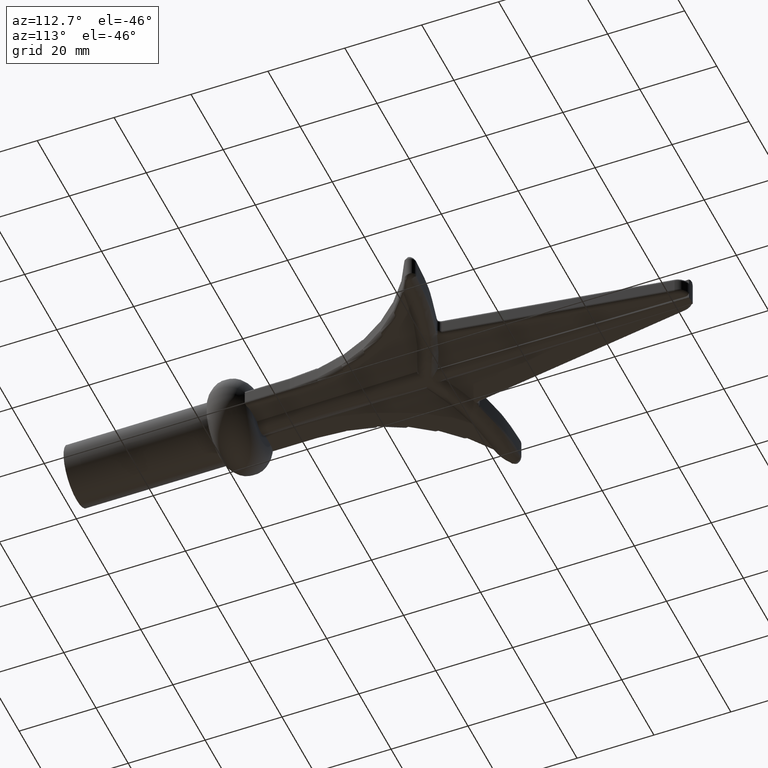
[diagram: clean part render]
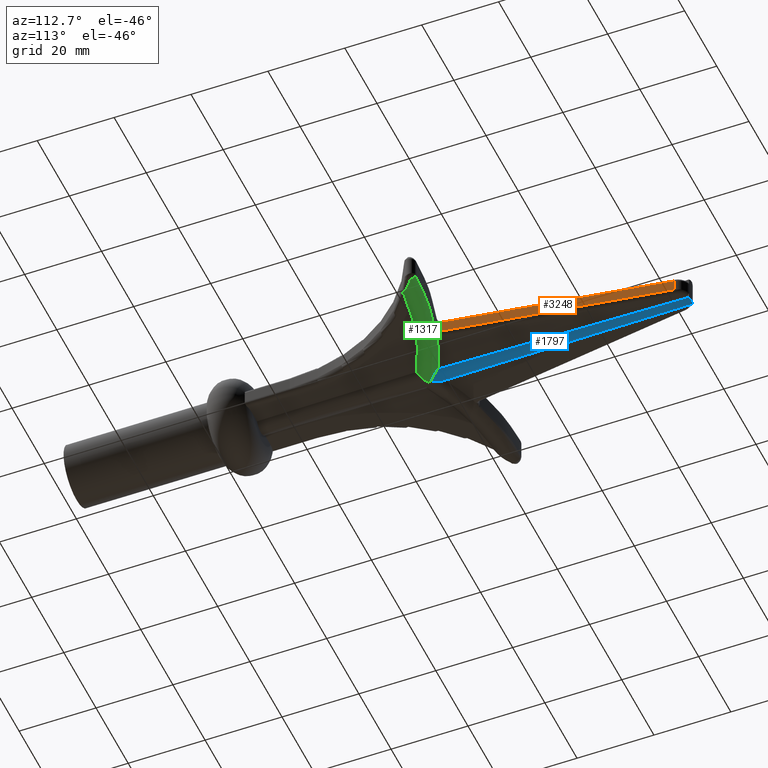
[diagram: same view with three faces highlighted in distinct colors, each labeled with its STEP entity id]
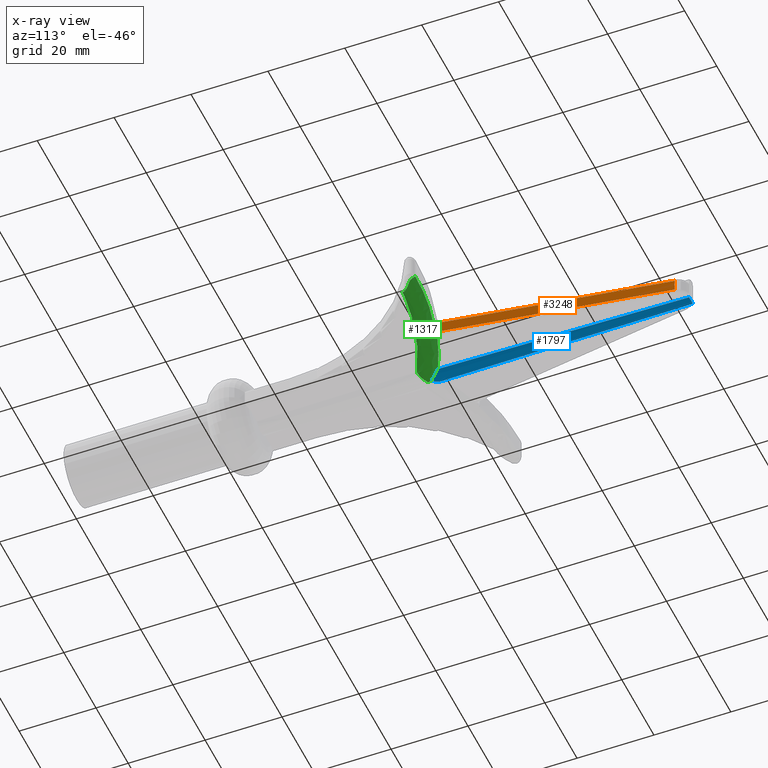
[diagram: x-ray of the same camera — body ghosted, the three highlighted faces saturated]
A machine part, auxiliary view with three faces highlighted in distinct colors.
The next image is the same camera in x-ray (body ghosted, the three faces saturated) — at least one of them is partly hidden behind the body in this view.
Their STEP definitions:

[orange] entity #3248 — the highlighted planar face has unit normal (-0.9882, -0.1533, 0).
#355 = EDGE_CURVE ( 'NONE', #4971, #5915, #15244, .T. ) ;
#694 = EDGE_LOOP ( 'NONE', ( #7406, #9055, #5603, #11361 ) ) ;
#840 = EDGE_CURVE ( 'NONE', #10910, #15716, #13915, .T. ) ;
#976 = CARTESIAN_POINT ( 'NONE',  ( 12.32500383537065858, 100.1277765334434520, 1.500000000000000000 ) ) ;
#1294 = DIRECTION ( 'NONE',  ( -0.9881743869312884510, -0.1533342134455721040, 0.000000000000000000 ) ) ;
#2070 = PLANE ( 'NONE',  #13926 ) ;
#3248 = ADVANCED_FACE ( 'NONE', ( #10589 ), #2070, .F. ) ;
#3917 = CARTESIAN_POINT ( 'NONE',  ( 12.32500383537065858, 100.1277765334434520, -2.500000000000000000 ) ) ;
#4971 = VERTEX_POINT ( 'NONE', #15572 ) ;
#5570 = CARTESIAN_POINT ( 'NONE',  ( 3.500000000000001332, 157.0012071835388667, 2.500000000000000000 ) ) ;
#5603 = ORIENTED_EDGE ( 'NONE', *, *, #7040, .T. ) ;
#5858 = VECTOR ( 'NONE', #7214, 1000.000000000000114 ) ;
#5878 = VECTOR ( 'NONE', #14134, 1000.000000000000000 ) ;
#5915 = VERTEX_POINT ( 'NONE', #8159 ) ;
#7040 = EDGE_CURVE ( 'NONE', #15716, #4971, #7685, .T. ) ;
#7214 = DIRECTION ( 'NONE',  ( 0.1533342134455720762, -0.9881743869312883399, -0.000000000000000000 ) ) ;
#7406 = ORIENTED_EDGE ( 'NONE', *, *, #12744, .F. ) ;
#7685 = LINE ( 'NONE', #3917, #12852 ) ;
#8159 = CARTESIAN_POINT ( 'NONE',  ( 3.500000000000001332, 157.0012071835388667, -1.500000000000000000 ) ) ;
#8506 = CARTESIAN_POINT ( 'NONE',  ( 3.500000000000001332, 157.0012071835388667, 1.500000000000000000 ) ) ;
#9055 = ORIENTED_EDGE ( 'NONE', *, *, #840, .T. ) ;
#9345 = CARTESIAN_POINT ( 'NONE',  ( 3.500000000000001332, 157.0012071835388667, -1.500000000000000000 ) ) ;
#9731 = DIRECTION ( 'NONE',  ( -0.1533342134455720762, 0.9881743869312883399, 0.000000000000000000 ) ) ;
#10008 = CARTESIAN_POINT ( 'NONE',  ( 3.500000000000001332, 157.0012071835388667, 2.500000000000000000 ) ) ;
#10589 = FACE_OUTER_BOUND ( 'NONE', #694, .T. ) ;
#10862 = VECTOR ( 'NONE', #9731, 1000.000000000000114 ) ;
#10910 = VERTEX_POINT ( 'NONE', #14035 ) ;
#11361 = ORIENTED_EDGE ( 'NONE', *, *, #355, .T. ) ;
#12581 = DIRECTION ( 'NONE',  ( -0.000000000000000000, -0.000000000000000000, -1.000000000000000000 ) ) ;
#12744 = EDGE_CURVE ( 'NONE', #10910, #5915, #12770, .T. ) ;
#12770 = LINE ( 'NONE', #5570, #5878 ) ;
#12852 = VECTOR ( 'NONE', #12581, 1000.000000000000000 ) ;
#13915 = LINE ( 'NONE', #8506, #5858 ) ;
#13926 = AXIS2_PLACEMENT_3D ( 'NONE', #10008, #1294, #14778 ) ;
#14035 = CARTESIAN_POINT ( 'NONE',  ( 3.500000000000001332, 157.0012071835388667, 1.500000000000000000 ) ) ;
#14134 = DIRECTION ( 'NONE',  ( -0.000000000000000000, -0.000000000000000000, -1.000000000000000000 ) ) ;
#14778 = DIRECTION ( 'NONE',  ( 0.1533342134455720762, -0.9881743869312883399, 0.000000000000000000 ) ) ;
#15244 = LINE ( 'NONE', #9345, #10862 ) ;
#15572 = CARTESIAN_POINT ( 'NONE',  ( 12.32500383537065858, 100.1277765334434520, -1.500000000000000000 ) ) ;
#15716 = VERTEX_POINT ( 'NONE', #976 ) ;

[blue] entity #1797 — the highlighted conical surface has half-angle 0.3 deg.
#4 = CARTESIAN_POINT ( 'NONE',  ( -0.1264396448751869129, 92.36065485860558510, -3.767726031668150455 ) ) ;
#12 = B_SPLINE_CURVE_WITH_KNOTS ( 'NONE', 3,
 ( #945, #9385, #4655, #1002, #787, #10698, #11882, #11935, #9275, #7200, #6125, #12084 ),
 .UNSPECIFIED., .F., .F.,
 ( 4, 2, 2, 2, 2, 4 ),
 ( 0.0003802280874064156344, 0.001231797211757282686, 0.002083366336108149683, 0.002934935460459016897, 0.003360720022634450504, 0.003786504584809884111 ),
 .UNSPECIFIED. ) ;
#160 = CARTESIAN_POINT ( 'NONE',  ( -3.153582016846582066E-14, 92.29096204883209964, -3.768090945701602301 ) ) ;
#244 = ORIENTED_EDGE ( 'NONE', *, *, #10599, .F. ) ;
#601 = B_SPLINE_CURVE_WITH_KNOTS ( 'NONE', 3,
 ( #2738, #9004, #9051, #14038 ),
 .UNSPECIFIED., .F., .F.,
 ( 4, 4 ),
 ( 0.04341592582648749754, 0.6757495788296877803 ),
 .UNSPECIFIED. ) ;
#634 = CARTESIAN_POINT ( 'NONE',  ( -1.006951313762134204, 93.26775330184528912, -3.566728771860140146 ) ) ;
#643 = EDGE_CURVE ( 'NONE', #6574, #4519, #8953, .T. ) ;
#787 = CARTESIAN_POINT ( 'NONE',  ( 1.331761157957247033, 93.70060165548267150, -3.400220532336859502 ) ) ;
#945 = CARTESIAN_POINT ( 'NONE',  ( 2.052103209963604957, 94.73507892923323936, -2.744696844932194235 ) ) ;
#1002 = CARTESIAN_POINT ( 'NONE',  ( 1.486922693738349510, 93.91818663155535774, -3.299555236711539496 ) ) ;
#1197 = CARTESIAN_POINT ( 'NONE',  ( -2.052068320943546187, 94.73506551407567144, -2.744691928529949365 ) ) ;
#1229 = CARTESIAN_POINT ( 'NONE',  ( -0.2407431886525943365, 92.44734551133778666, -3.758344598528756908 ) ) ;
#1511 = EDGE_CURVE ( 'NONE', #6574, #7067, #601, .T. ) ;
#1797 = ADVANCED_FACE ( 'NONE', ( #9677 ), #12919, .T. ) ;
#2028 = CARTESIAN_POINT ( 'NONE',  ( -1.709461791127834918, 124.6683832996656918, -2.901438384788517233 ) ) ;
#2035 = CARTESIAN_POINT ( 'NONE',  ( -0.9987872229997023510, 159.8575549057448768, -3.190298578263722540 ) ) ;
#2131 = CARTESIAN_POINT ( 'NONE',  ( -1.330697941167322984, 151.2826790878348504, -3.040791785156006011 ) ) ;
#2171 = EDGE_CURVE ( 'NONE', #9633, #9140, #3924, .T. ) ;
#2487 = DIRECTION ( 'NONE',  ( 0.000000000000000000, 0.000000000000000000, 1.000000000000000000 ) ) ;
#2738 = CARTESIAN_POINT ( 'NONE',  ( 1.171346412420531280, 159.7976383267974825, -3.085373236554601828 ) ) ;
#3196 = CARTESIAN_POINT ( 'NONE',  ( -1.171346412420323668, 159.7976383267983351, -3.085373236554597387 ) ) ;
#3240 = CARTESIAN_POINT ( 'NONE',  ( -1.826067233806085044, 115.0850378248706249, -2.851259646660764702 ) ) ;
#3300 = CARTESIAN_POINT ( 'NONE',  ( 0.8120706992319530748, 159.9073888545377429, -3.272156371224810734 ) ) ;
#3348 = CARTESIAN_POINT ( 'NONE',  ( -0.8133271923413594173, 159.9072683285429832, -3.271968638806884488 ) ) ;
#3451 = CARTESIAN_POINT ( 'NONE',  ( -1.171346412420323668, 159.7976383267983351, -3.085373236554597387 ) ) ;
#3494 = AXIS2_PLACEMENT_3D ( 'NONE', #3655, #9805, #2487 ) ;
#3655 = CARTESIAN_POINT ( 'NONE',  ( 0.000000000000000000, 48.00000000000000000, -1.166666666666666963 ) ) ;
#3924 = B_SPLINE_CURVE_WITH_KNOTS ( 'NONE', 3,
 ( #160, #4, #1229, #6096, #14670, #12465, #634, #12830, #5497, #11446, #15136, #10267 ),
 .UNSPECIFIED., .F., .F.,
 ( 4, 2, 2, 2, 2, 4 ),
 ( 0.002258785240995539630, 0.002685983637414587552, 0.003113182033833635041, 0.003967578826671760810, 0.004821975619509887012, 0.005676372412348012347 ),
 .UNSPECIFIED. ) ;
#4090 = CARTESIAN_POINT ( 'NONE',  ( -2.052068320943546187, 94.73506551407567144, -2.744691928529949365 ) ) ;
#4244 = CARTESIAN_POINT ( 'NONE',  ( -3.153582016846582066E-14, 92.29096204883209964, -3.768090945701602301 ) ) ;
#4478 = CARTESIAN_POINT ( 'NONE',  ( -2.013941410827047918, 98.32393079670328007, -2.763497893470328926 ) ) ;
#4519 = VERTEX_POINT ( 'NONE', #13134 ) ;
#4592 = CARTESIAN_POINT ( 'NONE',  ( 0.2120922160174355808, 159.9903918727688961, -3.405966381020339995 ) ) ;
#4655 = CARTESIAN_POINT ( 'NONE',  ( 1.783972216859908810, 94.34248245700470648, -3.055073370120276799 ) ) ;
#4917 = ORIENTED_EDGE ( 'NONE', *, *, #643, .F. ) ;
#5497 = CARTESIAN_POINT ( 'NONE',  ( -1.487866951234535717, 93.91952234539499500, -3.298856784626383210 ) ) ;
#5646 = CARTESIAN_POINT ( 'NONE',  ( -1.459056460950491685, 142.7671610589208910, -2.996204229555631038 ) ) ;
#5710 = CARTESIAN_POINT ( 'NONE',  ( -0.2078170459939071846, 159.9953266061707495, -3.413763620124769194 ) ) ;
#5770 = CARTESIAN_POINT ( 'NONE',  ( 1.171346412420531280, 159.7976383267974825, -3.085373236554601828 ) ) ;
#6096 = CARTESIAN_POINT ( 'NONE',  ( -0.4541148544319615898, 92.63547139123488705, -3.728581787449181117 ) ) ;
#6125 = CARTESIAN_POINT ( 'NONE',  ( 0.1270634501210378131, 92.36099869649258665, -3.767724231320743300 ) ) ;
#6270 = EDGE_CURVE ( 'NONE', #7067, #9633, #12, .T. ) ;
#6574 = VERTEX_POINT ( 'NONE', #12552 ) ;
#7067 = VERTEX_POINT ( 'NONE', #15044 ) ;
#7200 = CARTESIAN_POINT ( 'NONE',  ( 0.2413568879561906189, 92.44773211640945476, -3.758331217266118962 ) ) ;
#7473 = B_SPLINE_CURVE_WITH_KNOTS ( 'NONE', 3,
 ( #3451, #2131, #5646, #2028, #3240, #11816, #4478, #1197 ),
 .UNSPECIFIED., .F., .F.,
 ( 4, 2, 2, 4 ),
 ( 0.02784949366314176666, 0.2500000000000003331, 0.5000000000000002220, 0.5936204364114958665 ),
 .UNSPECIFIED. ) ;
#7499 = EDGE_LOOP ( 'NONE', ( #13754, #7817, #244, #4917, #8572 ) ) ;
#7817 = ORIENTED_EDGE ( 'NONE', *, *, #2171, .T. ) ;
#8572 = ORIENTED_EDGE ( 'NONE', *, *, #1511, .T. ) ;
#8953 = B_SPLINE_CURVE_WITH_KNOTS ( 'NONE', 3,
 ( #5770, #9273, #3300, #13046, #15330, #4592, #11879, #5710, #14278, #3348, #2035, #3196 ),
 .UNSPECIFIED., .F., .F.,
 ( 4, 2, 2, 2, 2, 4 ),
 ( 0.001290064517379201602, 0.001912384661161992822, 0.002223544733053388865, 0.002534704804944784041, 0.003157024948727575261, 0.003779345092510366481 ),
 .UNSPECIFIED. ) ;
#9004 = CARTESIAN_POINT ( 'NONE',  ( 1.468303931445969157, 143.8561199189778392, -3.001842882255840728 ) ) ;
#9051 = CARTESIAN_POINT ( 'NONE',  ( 1.760412261033626802, 122.1686003197198715, -2.888270763385857531 ) ) ;
#9140 = VERTEX_POINT ( 'NONE', #4090 ) ;
#9273 = CARTESIAN_POINT ( 'NONE',  ( 1.001622252425513171, 159.8565705212349712, -3.188573968829383709 ) ) ;
#9275 = CARTESIAN_POINT ( 'NONE',  ( 0.4568770065158652138, 92.63806365180239766, -3.728123137416283761 ) ) ;
#9385 = CARTESIAN_POINT ( 'NONE',  ( 1.923349973122587375, 94.54588315493167272, -2.913649841563854981 ) ) ;
#9633 = VERTEX_POINT ( 'NONE', #4244 ) ;
#9677 = FACE_OUTER_BOUND ( 'NONE', #7499, .T. ) ;
#9805 = DIRECTION ( 'NONE',  ( -0.000000000000000000, -1.000000000000000000, 0.000000000000000000 ) ) ;
#10267 = CARTESIAN_POINT ( 'NONE',  ( -2.052068320943546187, 94.73506551407567144, -2.744691928529949365 ) ) ;
#10599 = EDGE_CURVE ( 'NONE', #4519, #9140, #7473, .T. ) ;
#10698 = CARTESIAN_POINT ( 'NONE',  ( 1.007018289981889581, 93.26785446574443483, -3.566671985593288241 ) ) ;
#11446 = CARTESIAN_POINT ( 'NONE',  ( -1.784301824032667350, 94.34296634593886210, -3.054723049333987639 ) ) ;
#11816 = CARTESIAN_POINT ( 'NONE',  ( -1.974646514331949376, 101.9127696317646610, -2.782289181393829747 ) ) ;
#11879 = CARTESIAN_POINT ( 'NONE',  ( 0.1067360902511719500, 159.9951605734033251, -3.413500596530975262 ) ) ;
#11882 = CARTESIAN_POINT ( 'NONE',  ( 0.8376707201287530991, 93.05119144795558839, -3.632993108843812102 ) ) ;
#11935 = CARTESIAN_POINT ( 'NONE',  ( 0.5559184006993767024, 92.73986438422312517, -3.707449136835379022 ) ) ;
#12084 = CARTESIAN_POINT ( 'NONE',  ( -3.153582016846582066E-14, 92.29096204883209964, -3.768090945701602301 ) ) ;
#12465 = CARTESIAN_POINT ( 'NONE',  ( -0.8371574584546191966, 93.05046264819901580, -3.633240920637005544 ) ) ;
#12552 = CARTESIAN_POINT ( 'NONE',  ( 1.171346412420531280, 159.7976383267974825, -3.085373236554601828 ) ) ;
#12830 = CARTESIAN_POINT ( 'NONE',  ( -1.332333438629113687, 93.70137619858678590, -3.399904710376417061 ) ) ;
#12919 = CONICAL_SURFACE ( 'NONE', #3494, 2.833333333333333037, 0.005235987755983000265 ) ;
#13046 = CARTESIAN_POINT ( 'NONE',  ( 0.5169763563577022270, 159.9590096186928463, -3.355890807083308669 ) ) ;
#13134 = CARTESIAN_POINT ( 'NONE',  ( -1.171346412420323668, 159.7976383267983351, -3.085373236554597387 ) ) ;
#13754 = ORIENTED_EDGE ( 'NONE', *, *, #6270, .T. ) ;
#14038 = CARTESIAN_POINT ( 'NONE',  ( 2.052103209963604957, 94.73507892923323936, -2.744696844932194235 ) ) ;
#14278 = CARTESIAN_POINT ( 'NONE',  ( -0.4139468290724561683, 159.9769324199384073, -3.384955679446843391 ) ) ;
#14670 = CARTESIAN_POINT ( 'NONE',  ( -0.5540862372855516194, 92.73792163275466294, -3.707876593732016168 ) ) ;
#15044 = CARTESIAN_POINT ( 'NONE',  ( 2.052103209963604957, 94.73507892923323936, -2.744696844932194235 ) ) ;
#15136 = CARTESIAN_POINT ( 'NONE',  ( -1.923467753621212362, 94.54605629616327178, -2.913495194443820324 ) ) ;
#15330 = CARTESIAN_POINT ( 'NONE',  ( 0.4166892119434393860, 159.9723099996020608, -3.377151205954415314 ) ) ;

[green] entity #1317 — the highlighted face is a freeform B-spline surface patch.
#12 = B_SPLINE_CURVE_WITH_KNOTS ( 'NONE', 3,
 ( #945, #9385, #4655, #1002, #787, #10698, #11882, #11935, #9275, #7200, #6125, #12084 ),
 .UNSPECIFIED., .F., .F.,
 ( 4, 2, 2, 2, 2, 4 ),
 ( 0.0003802280874064156344, 0.001231797211757282686, 0.002083366336108149683, 0.002934935460459016897, 0.003360720022634450504, 0.003786504584809884111 ),
 .UNSPECIFIED. ) ;
#68 = VERTEX_POINT ( 'NONE', #13798 ) ;
#85 = CARTESIAN_POINT ( 'NONE',  ( 28.81598446080889531, 96.87967929215369622, -2.500000000000000000 ) ) ;
#203 = CARTESIAN_POINT ( 'NONE',  ( 33.34625859384622970, 104.5427267965029756, -2.500000000000000888 ) ) ;
#263 = CARTESIAN_POINT ( 'NONE',  ( 33.34831288682511286, 103.2865381603492381, -4.772727272727272485 ) ) ;
#282 = CARTESIAN_POINT ( 'NONE',  ( 28.34289530530126555, 96.73446621655568833, -2.285433751030570004 ) ) ;
#301 = CARTESIAN_POINT ( 'NONE',  ( 28.81597245504899263, 96.87967142556627209, -2.499986647238456872 ) ) ;
#302 = CARTESIAN_POINT ( 'NONE',  ( 2.897914937243554867, 89.72783605101008675, -2.500000000000000000 ) ) ;
#309 = CARTESIAN_POINT ( 'NONE',  ( 33.34607606368569321, 104.6543429660512032, -2.298061290073216245 ) ) ;
#356 = CARTESIAN_POINT ( 'NONE',  ( 2.336155231575338220, 90.07233965420687127, -3.240556201410553783 ) ) ;
#365 = CARTESIAN_POINT ( 'NONE',  ( 33.35267825940525910, 100.6171373085225014, -4.772727272727271597 ) ) ;
#774 = CARTESIAN_POINT ( 'NONE',  ( 3.299375577312292115E-14, 92.02961223027969595, -3.867188914202413397 ) ) ;
#787 = CARTESIAN_POINT ( 'NONE',  ( 1.331761157957247033, 93.70060165548267150, -3.400220532336859502 ) ) ;
#797 = EDGE_CURVE ( 'NONE', #5072, #68, #6484, .T. ) ;
#883 = B_SPLINE_CURVE_WITH_KNOTS ( 'NONE', 3,
 ( #7735, #6598, #1819, #10362, #15013, #10136 ),
 .UNSPECIFIED., .F., .F.,
 ( 4, 2, 4 ),
 ( -5.999999994808508060E-08, 0.0003888349486372245033, 0.0007777298972743971507 ),
 .UNSPECIFIED. ) ;
#945 = CARTESIAN_POINT ( 'NONE',  ( 2.052103209963604957, 94.73507892923323936, -2.744696844932194235 ) ) ;
#956 = ORIENTED_EDGE ( 'NONE', *, *, #4882, .T. ) ;
#1002 = CARTESIAN_POINT ( 'NONE',  ( 1.486922693738349510, 93.91818663155535774, -3.299555236711539496 ) ) ;
#1140 = CARTESIAN_POINT ( 'NONE',  ( 12.42488152674402713, 99.03894282697550011, -2.389480583458578167 ) ) ;
#1317 = ADVANCED_FACE ( 'NONE', ( #15424 ), #1407, .T. ) ;
#1361 = CARTESIAN_POINT ( 'NONE',  ( 14.40141193399546005, 102.3532090018719032, -2.197091935109824146 ) ) ;
#1407 =( BOUNDED_SURFACE ( )  B_SPLINE_SURFACE ( 3, 3, ( 
 ( #9990, #12297, #1361, #6234 ),
 ( #9879, #309, #5127, #13689 ),
 ( #11169, #7630, #2555, #7476 ),
 ( #11119, #203, #7574, #4967 ),
 ( #5076, #263, #3946, #13623 ),
 ( #14964, #365, #6293, #12508 ),
 ( #3784, #14862, #13751, #6179 ),
 ( #8867, #6399, #6350, #12346 ),
 ( #1571, #1517, #10040, #7522 ),
 ( #2706, #1467, #10087, #11545 ) ),
 .UNSPECIFIED., .F., .F., .T. ) 
 B_SPLINE_SURFACE_WITH_KNOTS ( ( 4, 3, 3, 4 ),
 ( 4, 4 ),
 ( -0.06865916137510678918, 0.000000000000000000, 1.000000000000000000, 1.087570831025001628 ),
 ( 0.000000000000000000, 1.000000000000000000 ),
 .UNSPECIFIED. ) 
 GEOMETRIC_REPRESENTATION_ITEM ( )  RATIONAL_B_SPLINE_SURFACE ( (
 ( 1.000000000000000000, 0.9480679056726728504, 0.9480679056726728504, 1.000000000000000000),
 ( 1.000000000000000000, 0.9480679056726728504, 0.9480679056726728504, 1.000000000000000000),
 ( 1.000000000000000000, 0.9480679056726728504, 0.9480679056726728504, 1.000000000000000000),
 ( 1.000000000000000000, 0.9480679056726728504, 0.9480679056726728504, 1.000000000000000000),
 ( 0.6470588235294117974, 0.6134557036705530209, 0.6134557036705530209, 0.6470588235294117974),
 ( 0.6470588235294117974, 0.6134557036705530209, 0.6134557036705530209, 0.6470588235294117974),
 ( 1.000000000000000000, 0.9480679056726728504, 0.9480679056726728504, 1.000000000000000000),
 ( 1.000000000000000000, 0.9480679056726728504, 0.9480679056726728504, 1.000000000000000000),
 ( 1.000000000000000000, 0.9480679056726728504, 0.9480679056726728504, 1.000000000000000000),
 ( 1.000000000000000000, 0.9480679056726728504, 0.9480679056726728504, 1.000000000000000000) ) ) 
 REPRESENTATION_ITEM ( '' )  SURFACE ( )  );
#1467 = CARTESIAN_POINT ( 'NONE',  ( 33.35508176254473511, 99.14740861753689671, -2.113658098419110676 ) ) ;
#1484 = EDGE_CURVE ( 'NONE', #68, #9816, #12647, .T. ) ;
#1517 = CARTESIAN_POINT ( 'NONE',  ( 33.35496535915787319, 99.21858863581417154, -2.242438732279406821 ) ) ;
#1571 = CARTESIAN_POINT ( 'NONE',  ( 50.34395675241247403, 94.43765056449909423, -2.242438732279407709 ) ) ;
#1606 = VERTEX_POINT ( 'NONE', #7773 ) ;
#1609 = CARTESIAN_POINT ( 'NONE',  ( 28.49762015088053602, 96.66915465959066012, -2.143901268413833439 ) ) ;
#1649 = CARTESIAN_POINT ( 'NONE',  ( 28.81598446080889531, 96.87967929215369622, -2.500000000000000000 ) ) ;
#1703 = CARTESIAN_POINT ( 'NONE',  ( 30.24241527630156767, 98.24329415392647036, -3.734434471835950120 ) ) ;
#1705 = CARTESIAN_POINT ( 'NONE',  ( 0.4123079225041143547, 91.23717403514729085, -4.000000000000000000 ) ) ;
#1715 = CARTESIAN_POINT ( 'NONE',  ( 28.60329097290494005, 96.73967290419855658, -2.262770503988554172 ) ) ;
#1760 = EDGE_CURVE ( 'NONE', #7004, #15138, #14790, .T. ) ;
#1811 = EDGE_CURVE ( 'NONE', #9164, #7276, #13988, .T. ) ;
#1819 = CARTESIAN_POINT ( 'NONE',  ( 13.14109557744464318, 99.09441892387333439, -2.661800833897432828 ) ) ;
#1863 = VERTEX_POINT ( 'NONE', #12482 ) ;
#1900 = ORIENTED_EDGE ( 'NONE', *, *, #10435, .F. ) ;
#1956 = CARTESIAN_POINT ( 'NONE',  ( 5.233357646385202067, 96.45237504848141441, -2.500000000000005773 ) ) ;
#1977 = CARTESIAN_POINT ( 'NONE',  ( -2.649499780033069642E-15, 91.75905622231472591, -3.933838625088992291 ) ) ;
#2235 = CARTESIAN_POINT ( 'NONE',  ( 28.04435640870163837, 96.78030661502135956, -2.410634872105177351 ) ) ;
#2268 = CARTESIAN_POINT ( 'NONE',  ( 12.59558633204140143, 99.18069464534063684, -2.227335105104313762 ) ) ;
#2359 = B_SPLINE_CURVE_WITH_KNOTS ( 'NONE', 3,
 ( #10244, #11862, #4522, #13079 ),
 .UNSPECIFIED., .F., .F.,
 ( 4, 4 ),
 ( 0.002904451398333466206, 0.003384362063196952146 ),
 .UNSPECIFIED. ) ;
#2389 = ORIENTED_EDGE ( 'NONE', *, *, #797, .T. ) ;
#2555 = CARTESIAN_POINT ( 'NONE',  ( 14.43063936990282414, 102.2454873252596599, -2.399030645036608345 ) ) ;
#2633 = CARTESIAN_POINT ( 'NONE',  ( 28.49762015088053602, 96.66915465959066012, -2.143901268413833439 ) ) ;
#2684 = CARTESIAN_POINT ( 'NONE',  ( 12.52586118945427174, 99.10755100872414403, -2.321080986443530669 ) ) ;
#2706 = CARTESIAN_POINT ( 'NONE',  ( 50.32603244836911216, 94.37134766514557782, -2.113658098419111120 ) ) ;
#2737 = CARTESIAN_POINT ( 'NONE',  ( 27.29249189842807866, 96.76877624936842892, -2.500000000000000000 ) ) ;
#2830 = ORIENTED_EDGE ( 'NONE', *, *, #14836, .T. ) ;
#2904 = CARTESIAN_POINT ( 'NONE',  ( 2.035772251369075914, 90.25572495752567193, -3.485770614272590606 ) ) ;
#2907 = CARTESIAN_POINT ( 'NONE',  ( -3.153582016846582066E-14, 92.29096204883209964, -3.768090945701602301 ) ) ;
#3089 = ORIENTED_EDGE ( 'NONE', *, *, #3790, .T. ) ;
#3182 = CARTESIAN_POINT ( 'NONE',  ( 0.5337542864262283526, 91.16434440583213927, -4.000000000000000888 ) ) ;
#3490 = CARTESIAN_POINT ( 'NONE',  ( 2.051554474409293949, 94.79357978202108370, -2.665985363361988991 ) ) ;
#3645 = CARTESIAN_POINT ( 'NONE',  ( 2.050454179215916106, 94.89766996732623738, -2.499999999999999556 ) ) ;
#3784 = CARTESIAN_POINT ( 'NONE',  ( 50.37980536049919777, 94.57025636320615547, -2.500000000000000444 ) ) ;
#3790 = EDGE_CURVE ( 'NONE', #13875, #13973, #5684, .T. ) ;
#3861 = B_SPLINE_CURVE_WITH_KNOTS ( 'NONE', 3,
 ( #85, #301, #15065, #7842, #8861, #1715, #1609 ),
 .UNSPECIFIED., .F., .F.,
 ( 4, 3, 4 ),
 ( -5.881206830412007852E-08, 1.488925102595449815E-21, 0.0005219400018623547056 ),
 .UNSPECIFIED. ) ;
#3946 = CARTESIAN_POINT ( 'NONE',  ( 14.77419443210218475, 100.9792685770245697, -4.772727272727272485 ) ) ;
#4111 = ORIENTED_EDGE ( 'NONE', *, *, #1484, .T. ) ;
#4145 = CARTESIAN_POINT ( 'NONE',  ( 29.45659774607527481, 97.50708926435227397, -3.267246213440067937 ) ) ;
#4244 = CARTESIAN_POINT ( 'NONE',  ( -3.153582016846582066E-14, 92.29096204883209964, -3.768090945701602301 ) ) ;
#4480 = DIRECTION ( 'NONE',  ( -0.000000000000000000, -0.000000000000000000, 1.000000000000000000 ) ) ;
#4504 = VERTEX_POINT ( 'NONE', #10477 ) ;
#4522 = CARTESIAN_POINT ( 'NONE',  ( 0.2751118939064359226, 91.31944054597038019, -4.000000000000000888 ) ) ;
#4535 = CARTESIAN_POINT ( 'NONE',  ( 33.00961070703473865, 101.0852750414553896, -3.521180720857854940 ) ) ;
#4655 = CARTESIAN_POINT ( 'NONE',  ( 1.783972216859908810, 94.34248245700470648, -3.055073370120276799 ) ) ;
#4677 = CARTESIAN_POINT ( 'NONE',  ( 26.10376085980054484, 101.7921579497617870, -2.795709836260085623 ) ) ;
#4756 = ORIENTED_EDGE ( 'NONE', *, *, #13589, .T. ) ;
#4793 = CARTESIAN_POINT ( 'NONE',  ( 32.49474386152903804, 101.8176413744199493, -2.795709836260057646 ) ) ;
#4882 = EDGE_CURVE ( 'NONE', #1863, #5072, #5599, .T. ) ;
#4967 = CARTESIAN_POINT ( 'NONE',  ( -2.073647453342847058, 92.70998070613150333, -2.500000000000000888 ) ) ;
#5072 = VERTEX_POINT ( 'NONE', #14839 ) ;
#5076 = CARTESIAN_POINT ( 'NONE',  ( 51.36833361934154141, 98.22687195595476339, -4.772727272727272485 ) ) ;
#5099 = CARTESIAN_POINT ( 'NONE',  ( 28.43337368677730481, 96.70832206734435488, -2.225131332319107536 ) ) ;
#5127 = CARTESIAN_POINT ( 'NONE',  ( 14.41602565194913943, 102.2993481635657673, -2.298061290073216245 ) ) ;
#5158 = CARTESIAN_POINT ( 'NONE',  ( 28.49762015088053602, 96.66915465959066012, -2.143901268413833439 ) ) ;
#5280 = CARTESIAN_POINT ( 'NONE',  ( 1.370789572070126860, 90.65982773377402282, -3.842240621543934420 ) ) ;
#5375 = CARTESIAN_POINT ( 'NONE',  ( 12.59558633204140143, 99.18069464534063684, -2.227335105104313762 ) ) ;
#5413 = CARTESIAN_POINT ( 'NONE',  ( 29.04429649927068624, 97.10642473186027246, -2.849625910336806012 ) ) ;
#5599 =( BOUNDED_CURVE ( )  B_SPLINE_CURVE ( 3, ( #12967, #6637, #4677, #5901 ),
 .UNSPECIFIED., .F., .F. ) 
 B_SPLINE_CURVE_WITH_KNOTS ( ( 4, 4 ),
 ( 0.01247770385721442762, 0.03159708022624484886 ),
 .UNSPECIFIED. ) 
 CURVE ( )  GEOMETRIC_REPRESENTATION_ITEM ( )  RATIONAL_B_SPLINE_CURVE ( ( 0.9026997567197019290, 0.8963779642057532193, 0.8956743768140909001, 0.9005889945447149714 ) ) 
 REPRESENTATION_ITEM ( '' )  );
#5684 = B_SPLINE_CURVE_WITH_KNOTS ( 'NONE', 3,
 ( #5158, #5099, #282, #9675, #2235, #9976, #7356, #8691 ),
 .UNSPECIFIED., .F., .F.,
 ( 4, 2, 2, 4 ),
 ( 0.000000000000000000, 0.0003260816362672461222, 0.0006521632725344922443, 0.001304326545068974297 ),
 .UNSPECIFIED. ) ;
#5901 = CARTESIAN_POINT ( 'NONE',  ( 32.49474386152903804, 101.8176413744199635, -2.795709836260057646 ) ) ;
#5996 = CARTESIAN_POINT ( 'NONE',  ( 2.050981072161464969, 94.84780786752995141, -2.584443056827625540 ) ) ;
#6125 = CARTESIAN_POINT ( 'NONE',  ( 0.1270634501210378131, 92.36099869649258665, -3.767724231320743300 ) ) ;
#6146 = CARTESIAN_POINT ( 'NONE',  ( 32.84784463818257194, 100.4810389332827896, -3.825914417267754164 ) ) ;
#6179 = CARTESIAN_POINT ( 'NONE',  ( 0.4566453807997999936, 88.39748512080198850, -2.500000000000000444 ) ) ;
#6234 = CARTESIAN_POINT ( 'NONE',  ( -2.155401704649046124, 92.84931827334212073, -2.197091935109824146 ) ) ;
#6256 = CARTESIAN_POINT ( 'NONE',  ( 32.92586126505099742, 100.6268224864663949, -3.767438127536860470 ) ) ;
#6265 = ORIENTED_EDGE ( 'NONE', *, *, #1811, .T. ) ;
#6270 = EDGE_CURVE ( 'NONE', #7067, #9633, #12, .T. ) ;
#6293 = CARTESIAN_POINT ( 'NONE',  ( 15.47319478862425512, 98.40300801842550982, -4.772727272727271597 ) ) ;
#6350 = CARTESIAN_POINT ( 'NONE',  ( 15.82077509378847324, 97.12195369164982139, -2.371219366139703411 ) ) ;
#6365 = CARTESIAN_POINT ( 'NONE',  ( 32.79681642180353407, 100.4114334285708168, -3.850037635944838055 ) ) ;
#6399 = CARTESIAN_POINT ( 'NONE',  ( 33.35484895577101838, 99.28976865409144636, -2.371219366139703411 ) ) ;
#6417 = CARTESIAN_POINT ( 'NONE',  ( 32.72829615982095675, 100.3572799857915925, -3.867213781541668283 ) ) ;
#6484 = B_SPLINE_CURVE_WITH_KNOTS ( 'NONE', 3,
 ( #4793, #13345, #12685, #13924, #15396, #8084, #15720, #11841, #12672, #4535, #12362, #12259, #6256, #6146, #6365, #6417 ),
 .UNSPECIFIED., .F., .F.,
 ( 4, 2, 2, 2, 2, 2, 2, 4 ),
 ( 7.152448122690996019E-18, 0.0001324785208786495670, 0.0002649570417572919782, 0.0005299140835146094351, 0.001059828167029262672, 0.001589742250543915800, 0.001854699292301242039, 0.002119656334058568712 ),
 .UNSPECIFIED. ) ;
#6510 = EDGE_CURVE ( 'NONE', #9816, #13875, #3861, .T. ) ;
#6598 = CARTESIAN_POINT ( 'NONE',  ( 13.03221495324317125, 99.11024863263396867, -2.587322532145675869 ) ) ;
#6601 = CARTESIAN_POINT ( 'NONE',  ( 12.70068613773129940, 99.15624791688601647, -2.327925474270526429 ) ) ;
#6637 = CARTESIAN_POINT ( 'NONE',  ( 19.77856137915839341, 100.8948679098091219, -2.795709836260084735 ) ) ;
#6780 = CARTESIAN_POINT ( 'NONE',  ( 2.050454179215916106, 94.89766996732623738, -2.499999999999999556 ) ) ;
#7004 = VERTEX_POINT ( 'NONE', #14779 ) ;
#7067 = VERTEX_POINT ( 'NONE', #15044 ) ;
#7200 = CARTESIAN_POINT ( 'NONE',  ( 0.2413568879561906189, 92.44773211640945476, -3.758331217266118962 ) ) ;
#7276 = VERTEX_POINT ( 'NONE', #2268 ) ;
#7356 = CARTESIAN_POINT ( 'NONE',  ( 27.50984859923727299, 96.78716866863629775, -2.499999999999998668 ) ) ;
#7476 = CARTESIAN_POINT ( 'NONE',  ( -2.100898870444913413, 92.75642656186838053, -2.399030645036608789 ) ) ;
#7522 = CARTESIAN_POINT ( 'NONE',  ( 0.5261606266735207038, 88.27900705893564748, -2.242438732279407709 ) ) ;
#7574 = CARTESIAN_POINT ( 'NONE',  ( 14.44525308785650530, 102.1916264869535240, -2.500000000000000888 ) ) ;
#7630 = CARTESIAN_POINT ( 'NONE',  ( 33.34616732876595790, 104.5985348812770894, -2.399030645036608345 ) ) ;
#7653 = ORIENTED_EDGE ( 'NONE', *, *, #10415, .T. ) ;
#7681 = CARTESIAN_POINT ( 'NONE',  ( 2.610209853957245585, 89.90461642763020222, -2.958355918742929358 ) ) ;
#7735 = CARTESIAN_POINT ( 'NONE',  ( 12.93872282373461680, 99.13118572087941516, -2.500000000000005329 ) ) ;
#7773 = CARTESIAN_POINT ( 'NONE',  ( -6.424827508964275695E-15, 91.48391425498671481, -3.969492771905684947 ) ) ;
#7791 = CARTESIAN_POINT ( 'NONE',  ( 0.8979576541487759300, 90.94529056590157268, -3.960255966482121082 ) ) ;
#7842 = CARTESIAN_POINT ( 'NONE',  ( 28.81594844352972729, 96.87965569238313890, -2.499959941719829271 ) ) ;
#7950 = CARTESIAN_POINT ( 'NONE',  ( 0.4123079225041143547, 91.23717403514729085, -4.000000000000000000 ) ) ;
#7994 = CARTESIAN_POINT ( 'NONE',  ( 12.93872282373461680, 99.13118572087941516, -2.500000000000005329 ) ) ;
#8012 = CARTESIAN_POINT ( 'NONE',  ( 32.77313493271324774, 32.00000000000002842, -2.500000000000000000 ) ) ;
#8084 = CARTESIAN_POINT ( 'NONE',  ( 32.77304363094109618, 101.6990590224542927, -2.954610148203559827 ) ) ;
#8093 = AXIS2_PLACEMENT_3D ( 'NONE', #8012, #4480, #15482 ) ;
#8347 = CARTESIAN_POINT ( 'NONE',  ( 28.81598446080889531, 96.87967929215369622, -2.500000000000000000 ) ) ;
#8425 = CARTESIAN_POINT ( 'NONE',  ( 12.19644644978399839, 98.91928522480053232, -2.478909831490010873 ) ) ;
#8691 = CARTESIAN_POINT ( 'NONE',  ( 27.29249189842807866, 96.76877624936842892, -2.500000000000000000 ) ) ;
#8808 = CARTESIAN_POINT ( 'NONE',  ( 2.768364526038241458, 89.80750991605262357, -2.744331583604527225 ) ) ;
#8829 = ORIENTED_EDGE ( 'NONE', *, *, #14223, .F. ) ;
#8861 = CARTESIAN_POINT ( 'NONE',  ( 28.70940086696467830, 96.80984195233976664, -2.381458058843317627 ) ) ;
#8867 = CARTESIAN_POINT ( 'NONE',  ( 50.36188105645583590, 94.50395346385262485, -2.371219366139703855 ) ) ;
#9016 = CARTESIAN_POINT ( 'NONE',  ( 2.238202226950924079, 90.13220660166342668, -3.328118881180029742 ) ) ;
#9117 = B_SPLINE_CURVE_WITH_KNOTS ( 'NONE', 3,
 ( #3645, #5996, #3490, #15775 ),
 .UNSPECIFIED., .F., .F.,
 ( 4, 4 ),
 ( 0.000000000000000000, 0.0002937880791545713116 ),
 .UNSPECIFIED. ) ;
#9164 = VERTEX_POINT ( 'NONE', #13990 ) ;
#9216 = CARTESIAN_POINT ( 'NONE',  ( 12.93872282373461680, 99.13118572087941516, -2.500000000000005329 ) ) ;
#9275 = CARTESIAN_POINT ( 'NONE',  ( 0.4568770065158652138, 92.63806365180239766, -3.728123137416283761 ) ) ;
#9338 = EDGE_LOOP ( 'NONE', ( #2389, #4111, #13069, #3089, #4756, #13095, #9776, #1900, #11534, #8829, #11771, #6265, #7653, #2830, #956 ) ) ;
#9385 = CARTESIAN_POINT ( 'NONE',  ( 1.923349973122587375, 94.54588315493167272, -2.913649841563854981 ) ) ;
#9633 = VERTEX_POINT ( 'NONE', #4244 ) ;
#9664 = CIRCLE ( 'NONE', #8093, 65.00024480653904391 ) ;
#9675 = CARTESIAN_POINT ( 'NONE',  ( 28.14930303523786037, 96.77031054779232022, -2.377798727701790682 ) ) ;
#9716 = EDGE_CURVE ( 'NONE', #9164, #4504, #11583, .T. ) ;
#9776 = ORIENTED_EDGE ( 'NONE', *, *, #12170, .F. ) ;
#9816 = VERTEX_POINT ( 'NONE', #8347 ) ;
#9879 = CARTESIAN_POINT ( 'NONE',  ( 51.71276945685249160, 99.50095738839240767, -2.298061290073216245 ) ) ;
#9976 = CARTESIAN_POINT ( 'NONE',  ( 27.72692619559432359, 96.79561022493440703, -2.483545492227022145 ) ) ;
#9990 = CARTESIAN_POINT ( 'NONE',  ( 51.72682285419319470, 99.55294160977145168, -2.197091935109824146 ) ) ;
#10040 = CARTESIAN_POINT ( 'NONE',  ( 15.83941405470699060, 97.05325727480308728, -2.242438732279406821 ) ) ;
#10087 = CARTESIAN_POINT ( 'NONE',  ( 15.85805301562551506, 96.98456085795636739, -2.113658098419110676 ) ) ;
#10136 = CARTESIAN_POINT ( 'NONE',  ( 13.63709155861966593, 99.14456338870958518, -2.795709836260061643 ) ) ;
#10244 = CARTESIAN_POINT ( 'NONE',  ( -6.424827508964275695E-15, 91.48391425498671481, -3.969492771905684947 ) ) ;
#10347 = CARTESIAN_POINT ( 'NONE',  ( 32.00099212438540519, 99.77335016045050509, -4.002220419196002688 ) ) ;
#10362 = CARTESIAN_POINT ( 'NONE',  ( 13.38075305938924409, 99.09307591143583238, -2.766430430446752631 ) ) ;
#10415 = EDGE_CURVE ( 'NONE', #7276, #15247, #14659, .T. ) ;
#10435 = EDGE_CURVE ( 'NONE', #9633, #1606, #10967, .T. ) ;
#10477 = CARTESIAN_POINT ( 'NONE',  ( 2.050454179215916106, 94.89766996732623738, -2.499999999999999556 ) ) ;
#10698 = CARTESIAN_POINT ( 'NONE',  ( 1.007018289981889581, 93.26785446574443483, -3.566671985593288241 ) ) ;
#10967 = B_SPLINE_CURVE_WITH_KNOTS ( 'NONE', 3,
 ( #2907, #774, #1977, #11599 ),
 .UNSPECIFIED., .F., .F.,
 ( 4, 4 ),
 ( 0.002041026720317187879, 0.002870652310042371130 ),
 .UNSPECIFIED. ) ;
#11119 = CARTESIAN_POINT ( 'NONE',  ( 51.68466266217108540, 99.39698894563431963, -2.500000000000000888 ) ) ;
#11169 = CARTESIAN_POINT ( 'NONE',  ( 51.69871605951178850, 99.44897316701336365, -2.399030645036608789 ) ) ;
#11470 = CARTESIAN_POINT ( 'NONE',  ( 29.75893844838961400, 97.79445672136189671, -3.485883621833175905 ) ) ;
#11534 = ORIENTED_EDGE ( 'NONE', *, *, #6270, .F. ) ;
#11541 = CARTESIAN_POINT ( 'NONE',  ( 12.81474579514324219, 99.13841062230092405, -2.421138530443994519 ) ) ;
#11545 = CARTESIAN_POINT ( 'NONE',  ( 0.5609182496103810589, 88.21976802800246276, -2.113658098419111120 ) ) ;
#11579 = CARTESIAN_POINT ( 'NONE',  ( 30.41174809938070922, 98.39746144459682853, -3.798486096331702644 ) ) ;
#11583 =( BOUNDED_CURVE ( )  B_SPLINE_CURVE ( 3, ( #15300, #11680, #1956, #6780 ),
 .UNSPECIFIED., .F., .F. ) 
 B_SPLINE_CURVE_WITH_KNOTS ( ( 4, 4 ),
 ( 0.7221980148825218881, 0.9143504739789781732 ),
 .UNSPECIFIED. ) 
 CURVE ( )  GEOMETRIC_REPRESENTATION_ITEM ( )  RATIONAL_B_SPLINE_CURVE ( ( 0.9687428967660496326, 0.9731774712555802953, 0.9795295120052400772, 0.9877990190150289784 ) ) 
 REPRESENTATION_ITEM ( '' )  );
#11599 = CARTESIAN_POINT ( 'NONE',  ( -6.424827508964275695E-15, 91.48391425498671481, -3.969492771905684947 ) ) ;
#11652 = CARTESIAN_POINT ( 'NONE',  ( 0.6570229431196888958, 91.09029427864282979, -3.991933940949015547 ) ) ;
#11680 = CARTESIAN_POINT ( 'NONE',  ( 8.535369773877267363, 97.76658012467082415, -2.500000000000005329 ) ) ;
#11771 = ORIENTED_EDGE ( 'NONE', *, *, #9716, .F. ) ;
#11841 = CARTESIAN_POINT ( 'NONE',  ( 32.92345854251188797, 101.4873226657563663, -3.192465311339895084 ) ) ;
#11862 = CARTESIAN_POINT ( 'NONE',  ( 0.1359449707964760501, 91.40272492122430492, -3.989719532272759661 ) ) ;
#11882 = CARTESIAN_POINT ( 'NONE',  ( 0.8376707201287530991, 93.05119144795558839, -3.632993108843812102 ) ) ;
#11935 = CARTESIAN_POINT ( 'NONE',  ( 0.5559184006993767024, 92.73986438422312517, -3.707449136835379022 ) ) ;
#12084 = CARTESIAN_POINT ( 'NONE',  ( -3.153582016846582066E-14, 92.29096204883209964, -3.768090945701602301 ) ) ;
#12170 = EDGE_CURVE ( 'NONE', #1606, #15138, #2359, .T. ) ;
#12259 = CARTESIAN_POINT ( 'NONE',  ( 32.95293926458656841, 100.7039168170281016, -3.732859973531220010 ) ) ;
#12297 = CARTESIAN_POINT ( 'NONE',  ( 33.34598479860542142, 104.7101510508252886, -2.197091935109824146 ) ) ;
#12346 = CARTESIAN_POINT ( 'NONE',  ( 0.4914030037366603487, 88.33824608986881799, -2.371219366139703855 ) ) ;
#12362 = CARTESIAN_POINT ( 'NONE',  ( 33.00765879793618751, 100.9339809564343255, -3.616178775467643991 ) ) ;
#12482 = CARTESIAN_POINT ( 'NONE',  ( 13.63709155861966593, 99.14456338870958518, -2.795709836260061643 ) ) ;
#12508 = CARTESIAN_POINT ( 'NONE',  ( -0.1567589426287388510, 89.44293859603340024, -4.772727272727271597 ) ) ;
#12608 = CARTESIAN_POINT ( 'NONE',  ( 1.930665290563942094, 90.31976263236455793, -3.556582849045077932 ) ) ;
#12647 = B_SPLINE_CURVE_WITH_KNOTS ( 'NONE', 3,
 ( #12802, #15105, #10347, #13986, #13938, #11579, #1703, #15307, #11470, #4145, #12696, #5413, #15152, #1649 ),
 .UNSPECIFIED., .F., .F.,
 ( 4, 2, 2, 2, 2, 2, 4 ),
 ( 1.966923233740024021E-17, 0.001411798393358226766, 0.002823596786716433583, 0.003529495983395533523, 0.004235395180074633462, 0.004941294376753733834, 0.005647193573432833340 ),
 .UNSPECIFIED. ) ;
#12672 = CARTESIAN_POINT ( 'NONE',  ( 32.96714018720549433, 101.3612310795235203, -3.309772561496411747 ) ) ;
#12685 = CARTESIAN_POINT ( 'NONE',  ( 32.58294589992795665, 101.8084100428858108, -2.809378144730955817 ) ) ;
#12696 = CARTESIAN_POINT ( 'NONE',  ( 29.31124868789050453, 97.36690967581708378, -3.140184818828612556 ) ) ;
#12802 = CARTESIAN_POINT ( 'NONE',  ( 32.72829615982095675, 100.3572799857915925, -3.867213781541668283 ) ) ;
#12967 = CARTESIAN_POINT ( 'NONE',  ( 13.63709155861966593, 99.14456338870958518, -2.795709836260061643 ) ) ;
#13069 = ORIENTED_EDGE ( 'NONE', *, *, #6510, .T. ) ;
#13079 = CARTESIAN_POINT ( 'NONE',  ( 0.4123079225041143547, 91.23717403514729085, -4.000000000000000000 ) ) ;
#13095 = ORIENTED_EDGE ( 'NONE', *, *, #1760, .T. ) ;
#13291 = CARTESIAN_POINT ( 'NONE',  ( 11.93922618597874497, 98.82775057064800706, -2.500000000000005329 ) ) ;
#13345 = CARTESIAN_POINT ( 'NONE',  ( 32.53967040838961822, 101.8178205146667210, -2.795709836260025671 ) ) ;
#13589 = EDGE_CURVE ( 'NONE', #13973, #7004, #9664, .T. ) ;
#13623 = CARTESIAN_POINT ( 'NONE',  ( -1.460243129914336135, 91.66452723090012000, -4.772727272727272485 ) ) ;
#13680 = CARTESIAN_POINT ( 'NONE',  ( 1.604274173882302978, 90.51827818300894535, -3.746298214107197655 ) ) ;
#13689 = CARTESIAN_POINT ( 'NONE',  ( -2.128150287546979769, 92.80287241760524353, -2.298061290073216245 ) ) ;
#13723 = CARTESIAN_POINT ( 'NONE',  ( 12.59558633204140143, 99.18069464534063684, -2.227335105104313762 ) ) ;
#13751 = CARTESIAN_POINT ( 'NONE',  ( 15.80213613286995233, 97.19065010849652708, -2.500000000000000444 ) ) ;
#13798 = CARTESIAN_POINT ( 'NONE',  ( 32.72829615982095675, 100.3572799857915925, -3.867213781541668283 ) ) ;
#13875 = VERTEX_POINT ( 'NONE', #2633 ) ;
#13924 = CARTESIAN_POINT ( 'NONE',  ( 32.65678036505030946, 101.7800445577632473, -2.848752714265356367 ) ) ;
#13938 = CARTESIAN_POINT ( 'NONE',  ( 30.92516302965766073, 98.85765761610856828, -3.949357495110656924 ) ) ;
#13973 = VERTEX_POINT ( 'NONE', #2737 ) ;
#13986 = CARTESIAN_POINT ( 'NONE',  ( 31.27750790010769322, 99.16408300133824127, -3.997610691206920031 ) ) ;
#13988 = B_SPLINE_CURVE_WITH_KNOTS ( 'NONE', 3,
 ( #13291, #14536, #8425, #1140, #2684, #13723 ),
 .UNSPECIFIED., .F., .F.,
 ( 4, 2, 4 ),
 ( 1.788112030672749005E-18, 0.0004068103588177762351, 0.0008136207176355506271 ),
 .UNSPECIFIED. ) ;
#13990 = CARTESIAN_POINT ( 'NONE',  ( 11.93922618597874497, 98.82775057064800706, -2.500000000000005329 ) ) ;
#14223 = EDGE_CURVE ( 'NONE', #4504, #7067, #9117, .T. ) ;
#14536 = CARTESIAN_POINT ( 'NONE',  ( 12.07030001777010142, 98.86861353891052318, -2.500000000000000444 ) ) ;
#14659 = B_SPLINE_CURVE_WITH_KNOTS ( 'NONE', 3,
 ( #5375, #6601, #11541, #9216 ),
 .UNSPECIFIED., .F., .F.,
 ( 4, 4 ),
 ( 0.000000000000000000, 0.0004413328764033460630 ),
 .UNSPECIFIED. ) ;
#14779 = CARTESIAN_POINT ( 'NONE',  ( 2.897914937243554867, 89.72783605101008675, -2.500000000000000000 ) ) ;
#14790 = B_SPLINE_CURVE_WITH_KNOTS ( 'NONE', 3,
 ( #302, #8808, #7681, #356, #9016, #2904, #12608, #13680, #5280, #15121, #7791, #11652, #3182, #7950 ),
 .UNSPECIFIED., .F., .F.,
 ( 4, 2, 2, 2, 2, 2, 4 ),
 ( 3.387155866508880464E-18, 0.0008496586706409028260, 0.001274488005961352775, 0.001699317341281802399, 0.002548976011922702081, 0.002973805347243151705, 0.003398634682563601329 ),
 .UNSPECIFIED. ) ;
#14836 = EDGE_CURVE ( 'NONE', #15247, #1863, #883, .T. ) ;
#14839 = CARTESIAN_POINT ( 'NONE',  ( 32.49474386152903804, 101.8176413744199493, -2.795709836260057646 ) ) ;
#14862 = CARTESIAN_POINT ( 'NONE',  ( 33.35473255238415646, 99.36094867236870698, -2.500000000000000444 ) ) ;
#14964 = CARTESIAN_POINT ( 'NONE',  ( 50.69613440332874887, 95.74037335288574013, -4.772727272727271597 ) ) ;
#15013 = CARTESIAN_POINT ( 'NONE',  ( 13.51034237342497057, 99.10844016766071718, -2.795709836260075853 ) ) ;
#15044 = CARTESIAN_POINT ( 'NONE',  ( 2.052103209963604957, 94.73507892923323936, -2.744696844932194235 ) ) ;
#15065 = CARTESIAN_POINT ( 'NONE',  ( 28.81596044928389233, 96.87966355897782478, -2.499973294482225494 ) ) ;
#15105 = CARTESIAN_POINT ( 'NONE',  ( 32.36412727303591907, 100.0694673242237940, -3.958500908010258446 ) ) ;
#15121 = CARTESIAN_POINT ( 'NONE',  ( 1.017138866211394932, 90.87343198085470419, -3.936648036700143738 ) ) ;
#15138 = VERTEX_POINT ( 'NONE', #1705 ) ;
#15152 = CARTESIAN_POINT ( 'NONE',  ( 28.92048724890630140, 96.98395118071091758, -2.683228012394560658 ) ) ;
#15247 = VERTEX_POINT ( 'NONE', #7994 ) ;
#15300 = CARTESIAN_POINT ( 'NONE',  ( 11.93922618597874497, 98.82775057064800706, -2.500000000000005329 ) ) ;
#15307 = CARTESIAN_POINT ( 'NONE',  ( 29.91638963901493042, 97.94212441430916272, -3.578151040962375795 ) ) ;
#15396 = CARTESIAN_POINT ( 'NONE',  ( 32.68801044052534621, 101.7616713422009553, -2.873601501424515980 ) ) ;
#15424 = FACE_OUTER_BOUND ( 'NONE', #9338, .T. ) ;
#15482 = DIRECTION ( 'NONE',  ( 0.2708708325666908112, 0.9626157032090365551, 0.000000000000000000 ) ) ;
#15720 = CARTESIAN_POINT ( 'NONE',  ( 32.81521992402458210, 101.6500036600878332, -3.013772722053833064 ) ) ;
#15775 = CARTESIAN_POINT ( 'NONE',  ( 2.052103209963604957, 94.73507892923323936, -2.744696844932194235 ) ) ;